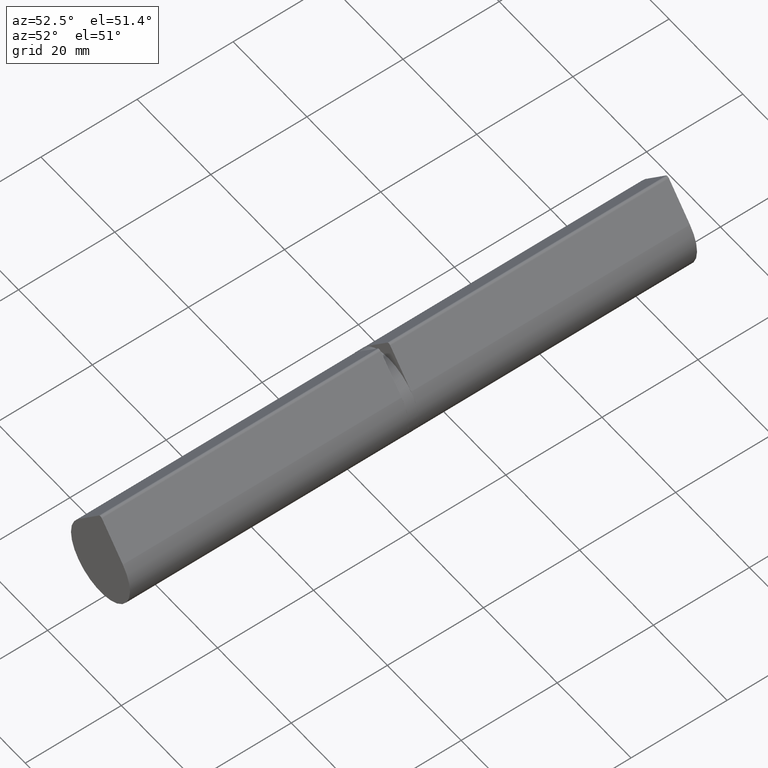
[diagram: clean part render]
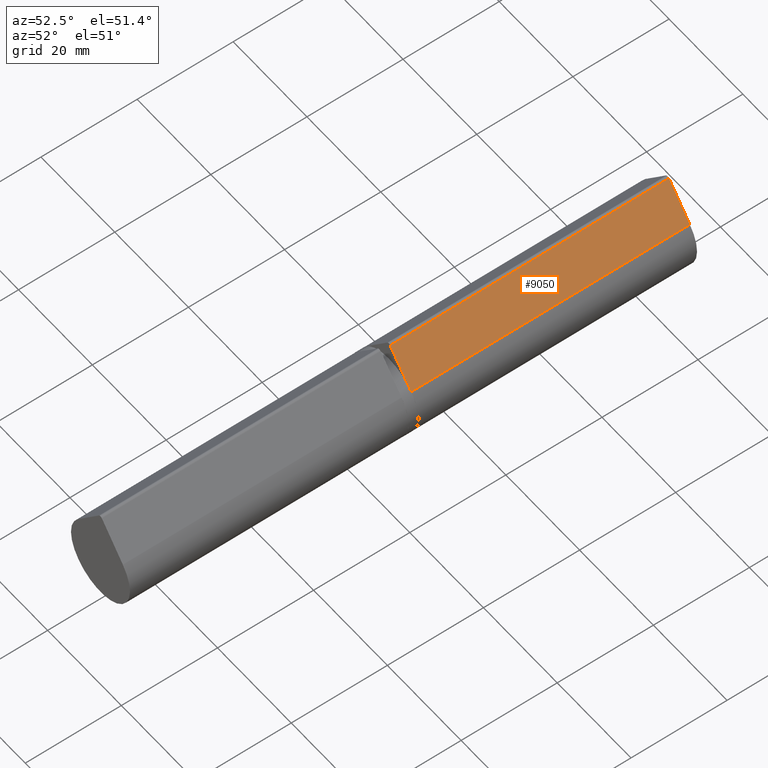
[diagram: same view with one face highlighted and labeled with its STEP entity id]
A machine part, auxiliary view. The second image highlights one B-rep face of the part: STEP entity #9050.
In plain terms, the highlighted planar face has unit normal (-0.7581, 0, -0.6522).
Its self-contained STEP definition (entity closure, byte-faithful):
#541 = EDGE_CURVE ( 'NONE', #1147, #11438, #12236, .T. ) ;
#1147 = VERTEX_POINT ( 'NONE', #3082 ) ;
#1559 = ORIENTED_EDGE ( 'NONE', *, *, #7354, .T. ) ;
#1840 = CARTESIAN_POINT ( 'NONE',  ( -0.3790346907426674350, -29.00000000000000000, 11.82608695652173658 ) ) ;
#2079 = CARTESIAN_POINT ( 'NONE',  ( -6.064555051882675407, 29.00000000000000000, 5.217391304347824388 ) ) ;
#2528 = CARTESIAN_POINT ( 'NONE',  ( -6.064555051882675407, 29.00000000000000000, 5.217391304347824388 ) ) ;
#2570 = PLANE ( 'NONE',  #6779 ) ;
#2742 = EDGE_LOOP ( 'NONE', ( #1559, #8373, #9974, #6053 ) ) ;
#2767 = FACE_OUTER_BOUND ( 'NONE', #2742, .T. ) ;
#3082 = CARTESIAN_POINT ( 'NONE',  ( -0.3790346907426674350, 29.00000000000000000, 11.82608695652173658 ) ) ;
#3088 = DIRECTION ( 'NONE',  ( -0.000000000000000000, -1.000000000000000000, -0.000000000000000000 ) ) ;
#3114 = VERTEX_POINT ( 'NONE', #11372 ) ;
#3443 = DIRECTION ( 'NONE',  ( 0.7580693814853346479, 0.000000000000000000, -0.6521739130434781595 ) ) ;
#4102 = VERTEX_POINT ( 'NONE', #13052 ) ;
#4633 = DIRECTION ( 'NONE',  ( -0.000000000000000000, -1.000000000000000000, -0.000000000000000000 ) ) ;
#5150 = DIRECTION ( 'NONE',  ( 0.6521739130434782705, 0.000000000000000000, 0.7580693814853345369 ) ) ;
#6053 = ORIENTED_EDGE ( 'NONE', *, *, #7404, .T. ) ;
#6524 = DIRECTION ( 'NONE',  ( 0.6521739130434782705, 0.000000000000000000, 0.7580693814853345369 ) ) ;
#6779 = AXIS2_PLACEMENT_3D ( 'NONE', #10744, #3443, #10600 ) ;
#7354 = EDGE_CURVE ( 'NONE', #4102, #11438, #10289, .T. ) ;
#7383 = LINE ( 'NONE', #2528, #8338 ) ;
#7404 = EDGE_CURVE ( 'NONE', #3114, #4102, #10770, .T. ) ;
#7909 = CARTESIAN_POINT ( 'NONE',  ( -0.3790346907426674350, 29.00000000000000000, 11.82608695652173658 ) ) ;
#8274 = VECTOR ( 'NONE', #4633, 1000.000000000000000 ) ;
#8338 = VECTOR ( 'NONE', #6524, 1000.000000000000000 ) ;
#8373 = ORIENTED_EDGE ( 'NONE', *, *, #541, .F. ) ;
#9050 = ADVANCED_FACE ( 'NONE', ( #2767 ), #2570, .F. ) ;
#9331 = VECTOR ( 'NONE', #5150, 1000.000000000000000 ) ;
#9974 = ORIENTED_EDGE ( 'NONE', *, *, #13017, .F. ) ;
#9976 = VECTOR ( 'NONE', #3088, 1000.000000000000000 ) ;
#10237 = CARTESIAN_POINT ( 'NONE',  ( -6.064555051882675407, -29.00000000000000000, 5.217391304347824388 ) ) ;
#10289 = LINE ( 'NONE', #10237, #9331 ) ;
#10600 = DIRECTION ( 'NONE',  ( -0.6521739130434781595, 0.000000000000000000, -0.7580693814853346479 ) ) ;
#10744 = CARTESIAN_POINT ( 'NONE',  ( -6.064555051882675407, 29.00000000000000000, 5.217391304347824388 ) ) ;
#10770 = LINE ( 'NONE', #2079, #9976 ) ;
#11372 = CARTESIAN_POINT ( 'NONE',  ( -6.064555051882675407, 29.00000000000000000, 5.217391304347824388 ) ) ;
#11438 = VERTEX_POINT ( 'NONE', #1840 ) ;
#12236 = LINE ( 'NONE', #7909, #8274 ) ;
#13017 = EDGE_CURVE ( 'NONE', #3114, #1147, #7383, .T. ) ;
#13052 = CARTESIAN_POINT ( 'NONE',  ( -6.064555051882675407, -29.00000000000000000, 5.217391304347824388 ) ) ;